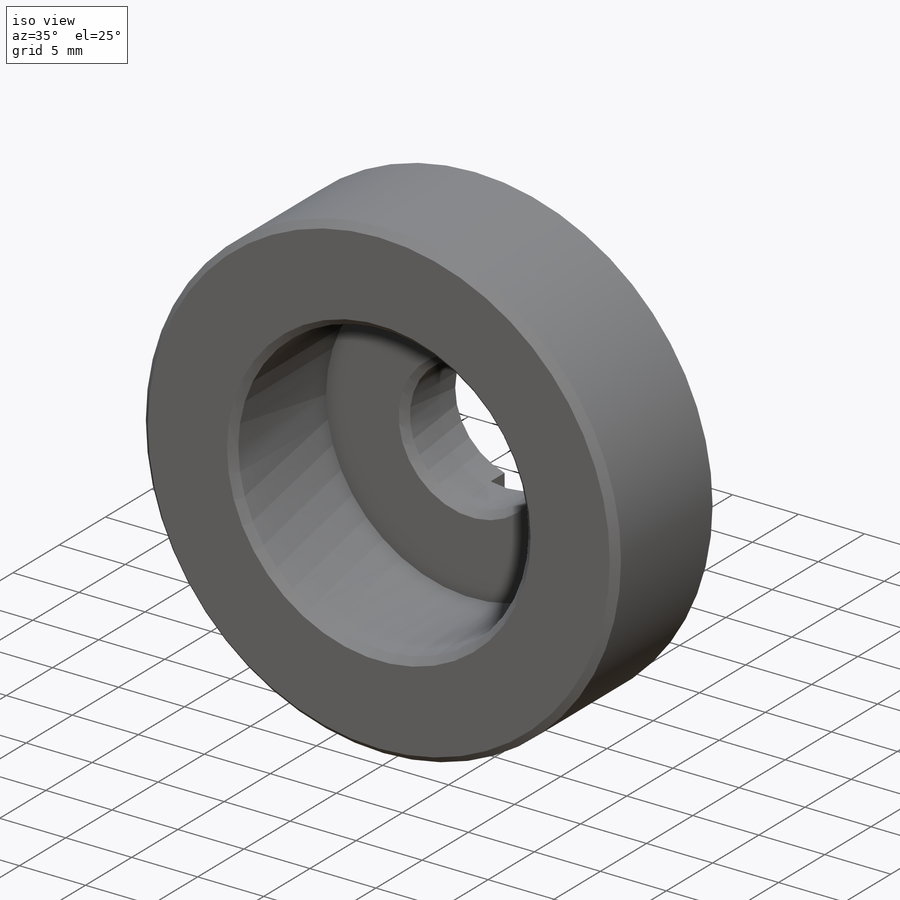
[diagram: iso view]
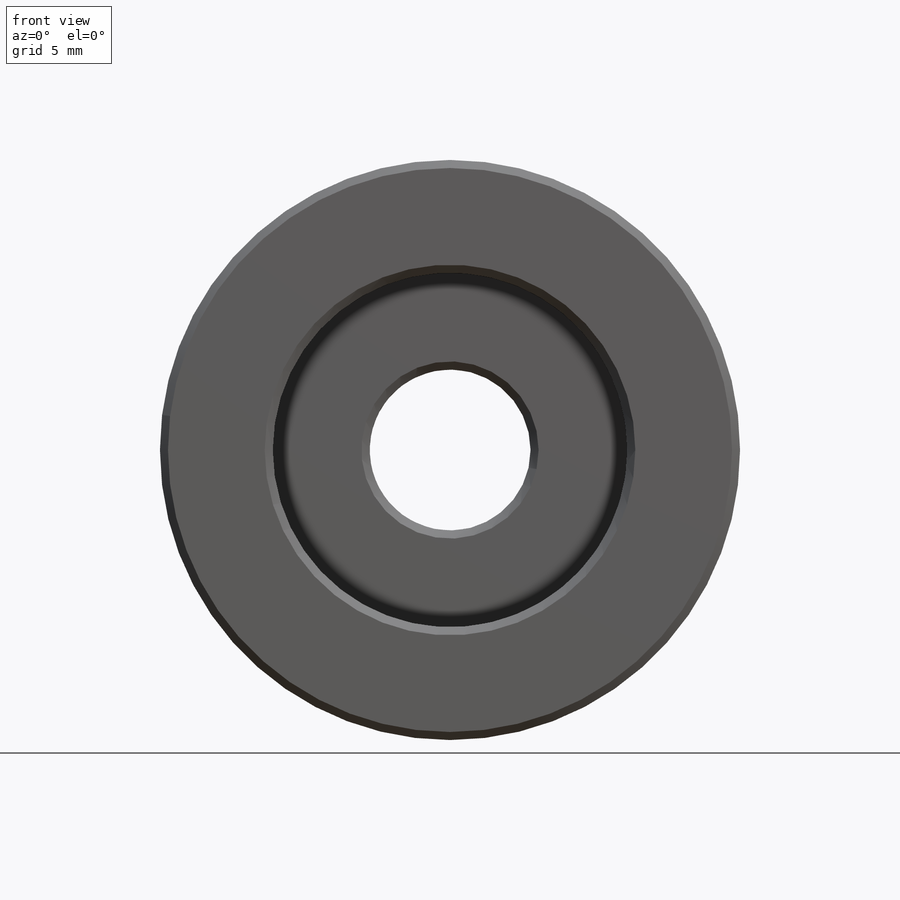
[diagram: front view]
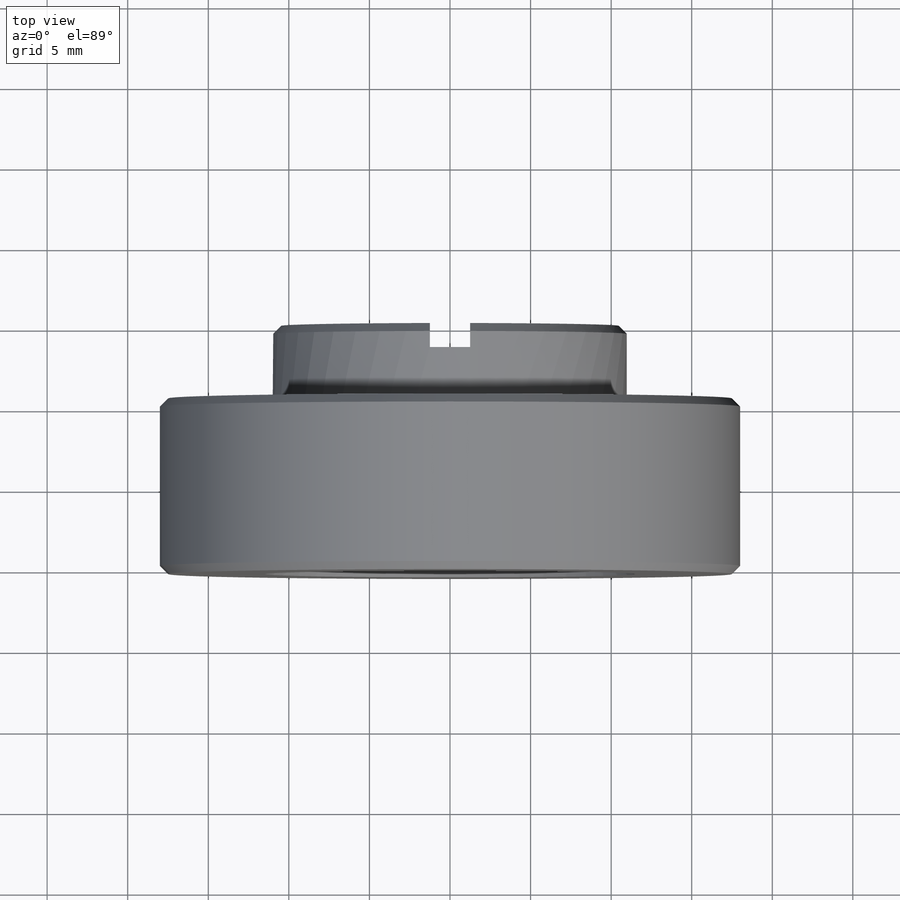
[diagram: top view]
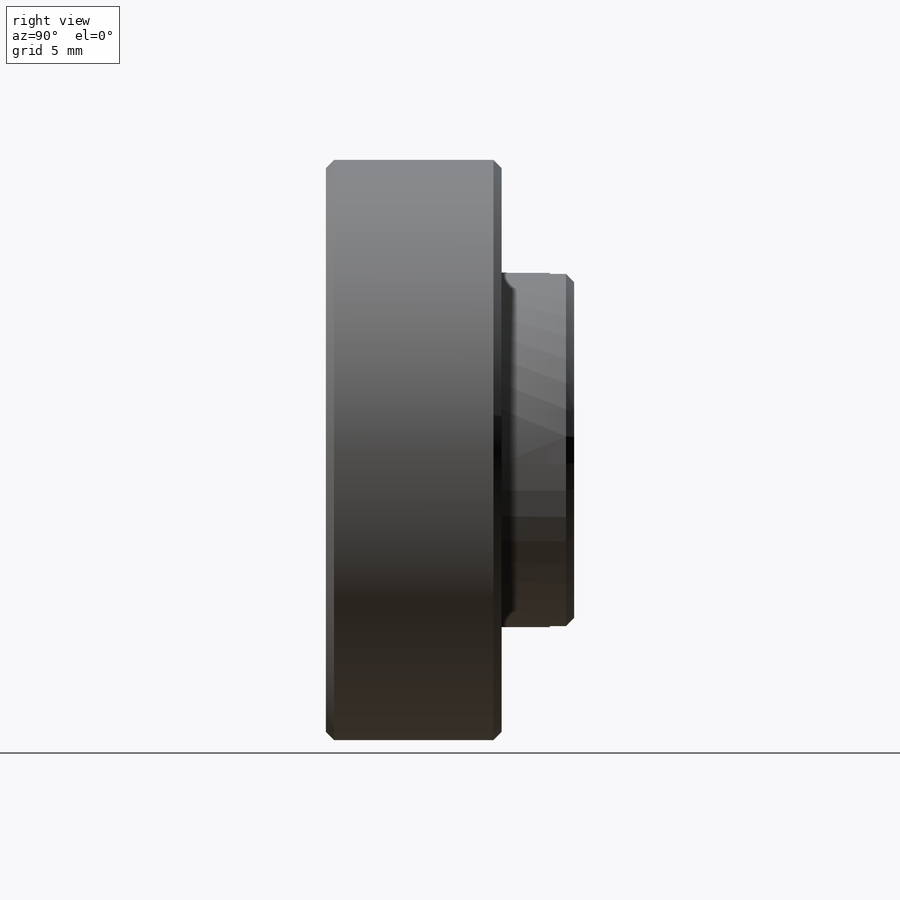
[diagram: right view]
SOLIDWORKS PART (.sldprt)
format: sldprt  version: not decoded by parser v0  size: 207,360 bytes
history: native  units: mm
features: sketch x2, material x1, revolve x1, cut_extrude x1, chamfer x1 (+11 scaffold rows collapsed)
feature tree (17):
  scaffold x11  (default folders/planes/origin — collapsed)
  material  "Material <not specified>"
  sketch  "Sketch2"  dims[D1=15.4mm D2=18.0mm D3=11.5mm D4=4.5mm D5=5.0mm D6=11.0mm D7=10.0mm]
  revolve  "Revolve1"  Angle=360deg
  sketch  "Sketch3"  dims[D1=1.25mm]
  cut_extrude  "Cut-Extrude1"  Depth=1.5mm
  chamfer  "Chamfer1"  Distance=0.5mm Angle=45deg
decode coverage: 5 of 5 modeling features carry decoded parameters
note: suppression state not decoded; provenance and decode notes live in map.json
